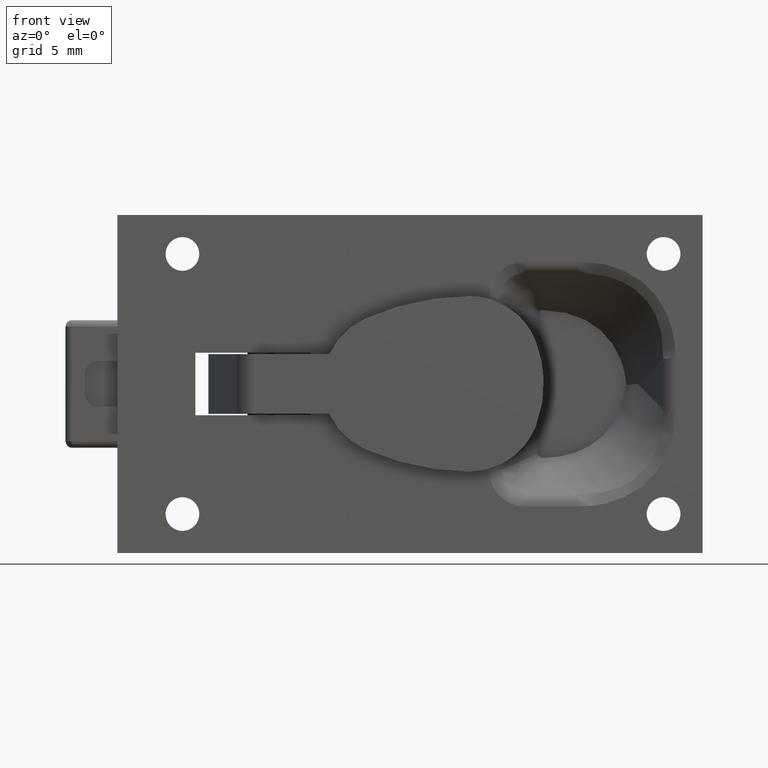
[diagram: clean part render]
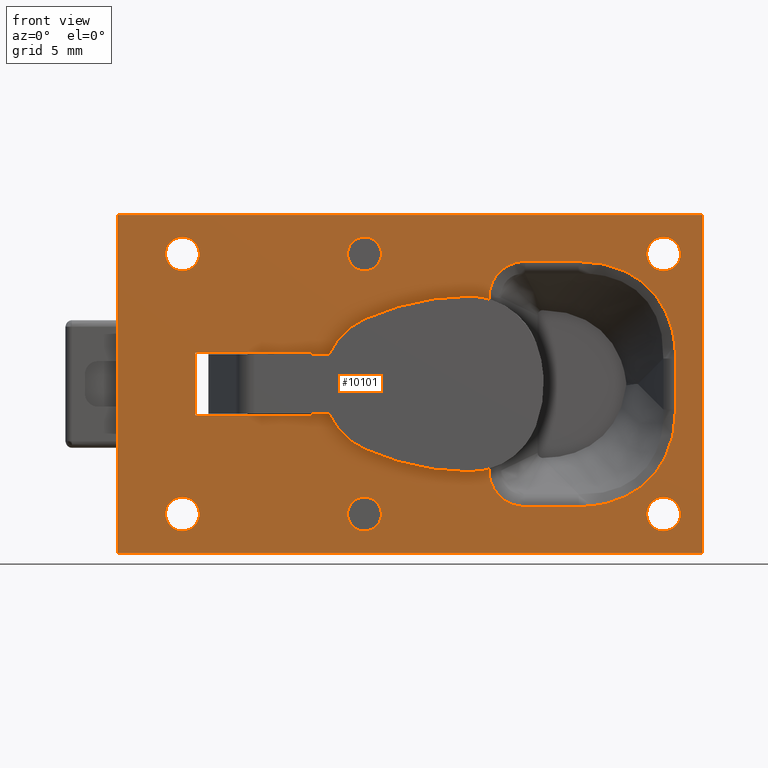
[diagram: same view with one face highlighted and labeled with its STEP entity id]
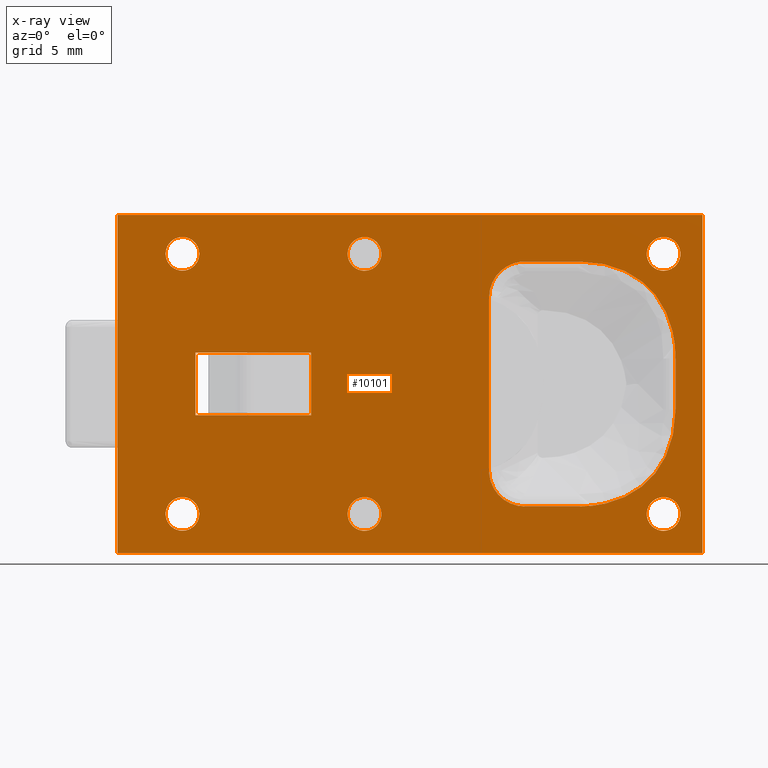
[diagram: x-ray of the same camera — body ghosted, the highlighted face saturated]
A machine part, front view. The second image highlights one B-rep face of the part: STEP entity #10101.
The next image is the same camera in x-ray: the body ghosted, the highlighted face saturated — about 0% of this face is hidden behind the body in this view.
In plain terms, the highlighted face is a freeform B-spline surface patch.
Its self-contained STEP definition (entity closure, byte-faithful):
#6309=CARTESIAN_POINT('',(-7.089949077953875,-4.713498E-017,9.838633597142373));
#6310=VERTEX_POINT('',#6309);
#6311=CARTESIAN_POINT('',(-5.800002999999920,0.0,8.699999999999999));
#6312=VERTEX_POINT('',#6311);
#6313=CARTESIAN_POINT('',(-7.089949077953875,-4.713498E-017,9.838633597142373));
#6314=CARTESIAN_POINT('',(-6.947511179919365,0.0,8.700000000000001));
#6315=CARTESIAN_POINT('',(-5.800002999999920,0.0,8.699999999999999));
#6323=(BOUNDED_CURVE()B_SPLINE_CURVE(2,(#6313,#6314,#6315),.UNSPECIFIED.,.F.,.U.)B_SPLINE_CURVE_WITH_KNOTS((3,3),(0.271473929010929,0.500000000000000),.UNSPECIFIED.)CURVE()GEOMETRIC_REPRESENTATION_ITEM()RATIONAL_B_SPLINE_CURVE((0.954005430196653,0.732265053940878,1.0))REPRESENTATION_ITEM(''));
#6324=EDGE_CURVE('',#6310,#6312,#6323,.T.);
#6326=CARTESIAN_POINT('',(-4.500052500018726,-4.683753E-017,10.011344496403289));
#6327=VERTEX_POINT('',#6326);
#6328=CARTESIAN_POINT('',(-5.800002999999920,0.0,8.699999999999999));
#6329=CARTESIAN_POINT('',(-4.500002999999920,0.0,8.699999999999999));
#6330=CARTESIAN_POINT('',(-4.500002999999920,0.0,10.0));
#6331=CARTESIAN_POINT('',(-4.500002999999920,0.0,10.005672356322325));
#6332=CARTESIAN_POINT('',(-4.500052500018726,-4.683753E-017,10.011344496403286));
#6340=(BOUNDED_CURVE()B_SPLINE_CURVE(2,(#6328,#6329,#6330,#6331,#6332),.UNSPECIFIED.,.F.,.U.)B_SPLINE_CURVE_WITH_KNOTS((3,2,3),(0.500000000000000,0.750000000000000,0.751539894404200),.UNSPECIFIED.)CURVE()GEOMETRIC_REPRESENTATION_ITEM()RATIONAL_B_SPLINE_CURVE((1.0,0.707106781186548,1.0,0.998195901485284,0.996414027940227))REPRESENTATION_ITEM(''));
#6341=EDGE_CURVE('',#6312,#6327,#6340,.T.);
#6412=CARTESIAN_POINT('',(-5.800002999999920,0.0,11.300000000000001));
#6413=VERTEX_POINT('',#6412);
#6414=CARTESIAN_POINT('',(-5.800002999999920,0.0,11.300000000000001));
#6415=CARTESIAN_POINT('',(-7.100002999999918,0.0,11.299999999999999));
#6416=CARTESIAN_POINT('',(-7.100002999999920,0.0,10.0));
#6417=CARTESIAN_POINT('',(-7.100002999999920,0.0,9.919003594050809));
#6418=CARTESIAN_POINT('',(-7.089949077953875,-4.713498E-017,9.838633597142373));
#6426=(BOUNDED_CURVE()B_SPLINE_CURVE(2,(#6414,#6415,#6416,#6417,#6418),.UNSPECIFIED.,.F.,.U.)B_SPLINE_CURVE_WITH_KNOTS((3,2,3),(0.0,0.250000000000000,0.271473929010929),.UNSPECIFIED.)CURVE()GEOMETRIC_REPRESENTATION_ITEM()RATIONAL_B_SPLINE_CURVE((1.0,0.707106781186548,1.0,0.974841727245670,0.954005430196653))REPRESENTATION_ITEM(''));
#6427=EDGE_CURVE('',#6413,#6310,#6426,.T.);
#6461=CARTESIAN_POINT('',(-4.500052500018726,-4.683753E-017,10.011344496403286));
#6462=CARTESIAN_POINT('',(-4.511298426732845,0.0,11.299999999999999));
#6463=CARTESIAN_POINT('',(-5.800002999999920,0.0,11.300000000000001));
#6471=(BOUNDED_CURVE()B_SPLINE_CURVE(2,(#6461,#6462,#6463),.UNSPECIFIED.,.F.,.U.)B_SPLINE_CURVE_WITH_KNOTS((3,3),(0.751539894404200,1.0),.UNSPECIFIED.)CURVE()GEOMETRIC_REPRESENTATION_ITEM()RATIONAL_B_SPLINE_CURVE((0.996414027940228,0.708910879701263,1.0))REPRESENTATION_ITEM(''));
#6472=EDGE_CURVE('',#6327,#6413,#6471,.T.);
#6495=CARTESIAN_POINT('',(-7.089949077953875,-4.713498E-017,-10.161366402857629));
#6496=VERTEX_POINT('',#6495);
#6497=CARTESIAN_POINT('',(-5.800002999999920,0.0,-11.300000000000001));
#6498=VERTEX_POINT('',#6497);
#6499=CARTESIAN_POINT('',(-7.089949077953875,-4.713498E-017,-10.161366402857626));
#6500=CARTESIAN_POINT('',(-6.947511179919368,0.0,-11.299999999999999));
#6501=CARTESIAN_POINT('',(-5.800002999999920,0.0,-11.300000000000001));
#6509=(BOUNDED_CURVE()B_SPLINE_CURVE(2,(#6499,#6500,#6501),.UNSPECIFIED.,.F.,.U.)B_SPLINE_CURVE_WITH_KNOTS((3,3),(0.271473929010929,0.500000000000000),.UNSPECIFIED.)CURVE()GEOMETRIC_REPRESENTATION_ITEM()RATIONAL_B_SPLINE_CURVE((0.954005430196653,0.732265053940877,1.0))REPRESENTATION_ITEM(''));
#6510=EDGE_CURVE('',#6496,#6498,#6509,.T.);
#6512=CARTESIAN_POINT('',(-4.500052500018726,-4.683753E-017,-9.988655503596714));
#6513=VERTEX_POINT('',#6512);
#6514=CARTESIAN_POINT('',(-5.800002999999920,0.0,-11.300000000000001));
#6515=CARTESIAN_POINT('',(-4.500002999999920,0.0,-11.299999999999999));
#6516=CARTESIAN_POINT('',(-4.500002999999920,0.0,-10.0));
#6517=CARTESIAN_POINT('',(-4.500002999999920,0.0,-9.994327643677673));
#6518=CARTESIAN_POINT('',(-4.500052500018726,-4.683753E-017,-9.988655503596714));
#6526=(BOUNDED_CURVE()B_SPLINE_CURVE(2,(#6514,#6515,#6516,#6517,#6518),.UNSPECIFIED.,.F.,.U.)B_SPLINE_CURVE_WITH_KNOTS((3,2,3),(0.500000000000000,0.750000000000000,0.751539894404200),.UNSPECIFIED.)CURVE()GEOMETRIC_REPRESENTATION_ITEM()RATIONAL_B_SPLINE_CURVE((1.0,0.707106781186548,1.0,0.998195901485284,0.996414027940227))REPRESENTATION_ITEM(''));
#6527=EDGE_CURVE('',#6498,#6513,#6526,.T.);
#6598=CARTESIAN_POINT('',(-5.800002999999920,0.0,-8.699999999999999));
#6599=VERTEX_POINT('',#6598);
#6600=CARTESIAN_POINT('',(-5.800002999999920,0.0,-8.699999999999999));
#6601=CARTESIAN_POINT('',(-7.100002999999918,0.0,-8.699999999999999));
#6602=CARTESIAN_POINT('',(-7.100002999999920,0.0,-10.0));
#6603=CARTESIAN_POINT('',(-7.100002999999919,0.0,-10.080996405949190));
#6604=CARTESIAN_POINT('',(-7.089949077953875,-4.713498E-017,-10.161366402857626));
#6612=(BOUNDED_CURVE()B_SPLINE_CURVE(2,(#6600,#6601,#6602,#6603,#6604),.UNSPECIFIED.,.F.,.U.)B_SPLINE_CURVE_WITH_KNOTS((3,2,3),(0.0,0.250000000000000,0.271473929010929),.UNSPECIFIED.)CURVE()GEOMETRIC_REPRESENTATION_ITEM()RATIONAL_B_SPLINE_CURVE((1.0,0.707106781186548,1.0,0.974841727245670,0.954005430196653))REPRESENTATION_ITEM(''));
#6613=EDGE_CURVE('',#6599,#6496,#6612,.T.);
#6647=CARTESIAN_POINT('',(-4.500052500018726,-4.683753E-017,-9.988655503596714));
#6648=CARTESIAN_POINT('',(-4.511298426732847,0.0,-8.700000000000001));
#6649=CARTESIAN_POINT('',(-5.800002999999920,0.0,-8.699999999999999));
#6657=(BOUNDED_CURVE()B_SPLINE_CURVE(2,(#6647,#6648,#6649),.UNSPECIFIED.,.F.,.U.)B_SPLINE_CURVE_WITH_KNOTS((3,3),(0.751539894404200,1.0),.UNSPECIFIED.)CURVE()GEOMETRIC_REPRESENTATION_ITEM()RATIONAL_B_SPLINE_CURVE((0.996414027940228,0.708910879701264,1.0))REPRESENTATION_ITEM(''));
#6658=EDGE_CURVE('',#6513,#6599,#6657,.T.);
#6681=CARTESIAN_POINT('',(6.910050922046045,-4.713498E-017,9.838633597142373));
#6682=VERTEX_POINT('',#6681);
#6683=CARTESIAN_POINT('',(8.199997000000000,0.0,8.699999999999999));
#6684=VERTEX_POINT('',#6683);
#6685=CARTESIAN_POINT('',(6.910050922046046,-4.713498E-017,9.838633597142373));
#6686=CARTESIAN_POINT('',(7.052488820080558,0.0,8.699999999999999));
#6687=CARTESIAN_POINT('',(8.199997000000000,0.0,8.699999999999999));
#6695=(BOUNDED_CURVE()B_SPLINE_CURVE(2,(#6685,#6686,#6687),.UNSPECIFIED.,.F.,.U.)B_SPLINE_CURVE_WITH_KNOTS((3,3),(0.271473929010929,0.500000000000000),.UNSPECIFIED.)CURVE()GEOMETRIC_REPRESENTATION_ITEM()RATIONAL_B_SPLINE_CURVE((0.954005430196652,0.732265053940878,1.0))REPRESENTATION_ITEM(''));
#6696=EDGE_CURVE('',#6682,#6684,#6695,.T.);
#6698=CARTESIAN_POINT('',(9.499947499981193,-4.683753E-017,10.011344496403289));
#6699=VERTEX_POINT('',#6698);
#6700=CARTESIAN_POINT('',(8.199997000000000,0.0,8.699999999999999));
#6701=CARTESIAN_POINT('',(9.499997000000001,0.0,8.699999999999999));
#6702=CARTESIAN_POINT('',(9.499997000000001,0.0,10.0));
#6703=CARTESIAN_POINT('',(9.499997000000001,0.0,10.005672356322325));
#6704=CARTESIAN_POINT('',(9.499947499981193,-4.683753E-017,10.011344496403286));
#6712=(BOUNDED_CURVE()B_SPLINE_CURVE(2,(#6700,#6701,#6702,#6703,#6704),.UNSPECIFIED.,.F.,.U.)B_SPLINE_CURVE_WITH_KNOTS((3,2,3),(0.500000000000000,0.750000000000000,0.751539894404200),.UNSPECIFIED.)CURVE()GEOMETRIC_REPRESENTATION_ITEM()RATIONAL_B_SPLINE_CURVE((1.0,0.707106781186548,1.0,0.998195901485284,0.996414027940227))REPRESENTATION_ITEM(''));
#6713=EDGE_CURVE('',#6684,#6699,#6712,.T.);
#6784=CARTESIAN_POINT('',(8.199997000000000,0.0,11.300000000000001));
#6785=VERTEX_POINT('',#6784);
#6786=CARTESIAN_POINT('',(8.199997000000000,0.0,11.300000000000001));
#6787=CARTESIAN_POINT('',(6.899997000000001,0.0,11.299999999999999));
#6788=CARTESIAN_POINT('',(6.899997000000001,0.0,10.0));
#6789=CARTESIAN_POINT('',(6.899997000000002,0.0,9.919003594050809));
#6790=CARTESIAN_POINT('',(6.910050922046045,-4.713498E-017,9.838633597142373));
#6798=(BOUNDED_CURVE()B_SPLINE_CURVE(2,(#6786,#6787,#6788,#6789,#6790),.UNSPECIFIED.,.F.,.U.)B_SPLINE_CURVE_WITH_KNOTS((3,2,3),(0.0,0.250000000000000,0.271473929010929),.UNSPECIFIED.)CURVE()GEOMETRIC_REPRESENTATION_ITEM()RATIONAL_B_SPLINE_CURVE((1.0,0.707106781186548,1.0,0.974841727245670,0.954005430196652))REPRESENTATION_ITEM(''));
#6799=EDGE_CURVE('',#6785,#6682,#6798,.T.);
#6833=CARTESIAN_POINT('',(9.499947499981193,-4.683753E-017,10.011344496403286));
#6834=CARTESIAN_POINT('',(9.488701573267074,0.0,11.299999999999999));
#6835=CARTESIAN_POINT('',(8.199997000000000,0.0,11.300000000000001));
#6843=(BOUNDED_CURVE()B_SPLINE_CURVE(2,(#6833,#6834,#6835),.UNSPECIFIED.,.F.,.U.)B_SPLINE_CURVE_WITH_KNOTS((3,3),(0.751539894404200,1.0),.UNSPECIFIED.)CURVE()GEOMETRIC_REPRESENTATION_ITEM()RATIONAL_B_SPLINE_CURVE((0.996414027940228,0.708910879701263,1.0))REPRESENTATION_ITEM(''));
#6844=EDGE_CURVE('',#6699,#6785,#6843,.T.);
#6867=CARTESIAN_POINT('',(6.910050922046045,-4.713498E-017,-10.161366402857629));
#6868=VERTEX_POINT('',#6867);
#6869=CARTESIAN_POINT('',(8.199997000000000,0.0,-11.300000000000001));
#6870=VERTEX_POINT('',#6869);
#6871=CARTESIAN_POINT('',(6.910050922046045,-4.713498E-017,-10.161366402857626));
#6872=CARTESIAN_POINT('',(7.052488820080554,0.0,-11.299999999999999));
#6873=CARTESIAN_POINT('',(8.199997000000000,0.0,-11.300000000000001));
#6881=(BOUNDED_CURVE()B_SPLINE_CURVE(2,(#6871,#6872,#6873),.UNSPECIFIED.,.F.,.U.)B_SPLINE_CURVE_WITH_KNOTS((3,3),(0.271473929010929,0.500000000000000),.UNSPECIFIED.)CURVE()GEOMETRIC_REPRESENTATION_ITEM()RATIONAL_B_SPLINE_CURVE((0.954005430196653,0.732265053940877,1.0))REPRESENTATION_ITEM(''));
#6882=EDGE_CURVE('',#6868,#6870,#6881,.T.);
#6884=CARTESIAN_POINT('',(9.499947499981193,-4.683753E-017,-9.988655503596714));
#6885=VERTEX_POINT('',#6884);
#6886=CARTESIAN_POINT('',(8.199997000000000,0.0,-11.300000000000001));
#6887=CARTESIAN_POINT('',(9.499997000000001,0.0,-11.299999999999999));
#6888=CARTESIAN_POINT('',(9.499997000000001,0.0,-10.0));
#6889=CARTESIAN_POINT('',(9.499997000000001,0.0,-9.994327643677673));
#6890=CARTESIAN_POINT('',(9.499947499981193,-4.683753E-017,-9.988655503596714));
#6898=(BOUNDED_CURVE()B_SPLINE_CURVE(2,(#6886,#6887,#6888,#6889,#6890),.UNSPECIFIED.,.F.,.U.)B_SPLINE_CURVE_WITH_KNOTS((3,2,3),(0.500000000000000,0.750000000000000,0.751539894404200),.UNSPECIFIED.)CURVE()GEOMETRIC_REPRESENTATION_ITEM()RATIONAL_B_SPLINE_CURVE((1.0,0.707106781186548,1.0,0.998195901485284,0.996414027940227))REPRESENTATION_ITEM(''));
#6899=EDGE_CURVE('',#6870,#6885,#6898,.T.);
#6970=CARTESIAN_POINT('',(8.199997000000000,0.0,-8.699999999999999));
#6971=VERTEX_POINT('',#6970);
#6972=CARTESIAN_POINT('',(8.199997000000000,0.0,-8.699999999999999));
#6973=CARTESIAN_POINT('',(6.899997000000001,0.0,-8.699999999999999));
#6974=CARTESIAN_POINT('',(6.899997000000001,0.0,-10.0));
#6975=CARTESIAN_POINT('',(6.899997000000001,0.0,-10.080996405949190));
#6976=CARTESIAN_POINT('',(6.910050922046045,-4.713498E-017,-10.161366402857626));
#6984=(BOUNDED_CURVE()B_SPLINE_CURVE(2,(#6972,#6973,#6974,#6975,#6976),.UNSPECIFIED.,.F.,.U.)B_SPLINE_CURVE_WITH_KNOTS((3,2,3),(0.0,0.250000000000000,0.271473929010929),.UNSPECIFIED.)CURVE()GEOMETRIC_REPRESENTATION_ITEM()RATIONAL_B_SPLINE_CURVE((1.0,0.707106781186548,1.0,0.974841727245670,0.954005430196653))REPRESENTATION_ITEM(''));
#6985=EDGE_CURVE('',#6971,#6868,#6984,.T.);
#7019=CARTESIAN_POINT('',(9.499947499981193,-4.683753E-017,-9.988655503596714));
#7020=CARTESIAN_POINT('',(9.488701573267074,0.0,-8.699999999999999));
#7021=CARTESIAN_POINT('',(8.199997000000000,0.0,-8.699999999999999));
#7029=(BOUNDED_CURVE()B_SPLINE_CURVE(2,(#7019,#7020,#7021),.UNSPECIFIED.,.F.,.U.)B_SPLINE_CURVE_WITH_KNOTS((3,3),(0.751539894404200,1.0),.UNSPECIFIED.)CURVE()GEOMETRIC_REPRESENTATION_ITEM()RATIONAL_B_SPLINE_CURVE((0.996414027940228,0.708910879701263,1.0))REPRESENTATION_ITEM(''));
#7030=EDGE_CURVE('',#6885,#6971,#7029,.T.);
#7053=CARTESIAN_POINT('',(29.910050922046050,-4.713498E-017,9.838633597142376));
#7054=VERTEX_POINT('',#7053);
#7055=CARTESIAN_POINT('',(31.199997000000000,0.0,8.699999999999999));
#7056=VERTEX_POINT('',#7055);
#7057=CARTESIAN_POINT('',(29.910050922046047,-4.713498E-017,9.838633597142376));
#7058=CARTESIAN_POINT('',(30.052488820080555,0.0,8.699999999999999));
#7059=CARTESIAN_POINT('',(31.199997000000000,0.0,8.699999999999999));
#7067=(BOUNDED_CURVE()B_SPLINE_CURVE(2,(#7057,#7058,#7059),.UNSPECIFIED.,.F.,.U.)B_SPLINE_CURVE_WITH_KNOTS((3,3),(0.271473929010929,0.500000000000000),.UNSPECIFIED.)CURVE()GEOMETRIC_REPRESENTATION_ITEM()RATIONAL_B_SPLINE_CURVE((0.954005430196653,0.732265053940878,1.0))REPRESENTATION_ITEM(''));
#7068=EDGE_CURVE('',#7054,#7056,#7067,.T.);
#7070=CARTESIAN_POINT('',(32.499947499981189,-4.683753E-017,10.011344496403289));
#7071=VERTEX_POINT('',#7070);
#7072=CARTESIAN_POINT('',(31.199997000000000,0.0,8.699999999999999));
#7073=CARTESIAN_POINT('',(32.499996999999993,0.0,8.699999999999999));
#7074=CARTESIAN_POINT('',(32.499997000000000,0.0,10.0));
#7075=CARTESIAN_POINT('',(32.499996999999993,0.0,10.005672356322325));
#7076=CARTESIAN_POINT('',(32.499947499981189,-4.683753E-017,10.011344496403286));
#7084=(BOUNDED_CURVE()B_SPLINE_CURVE(2,(#7072,#7073,#7074,#7075,#7076),.UNSPECIFIED.,.F.,.U.)B_SPLINE_CURVE_WITH_KNOTS((3,2,3),(0.500000000000000,0.750000000000000,0.751539894404200),.UNSPECIFIED.)CURVE()GEOMETRIC_REPRESENTATION_ITEM()RATIONAL_B_SPLINE_CURVE((1.0,0.707106781186548,1.0,0.998195901485284,0.996414027940227))REPRESENTATION_ITEM(''));
#7085=EDGE_CURVE('',#7056,#7071,#7084,.T.);
#7156=CARTESIAN_POINT('',(31.199997000000000,0.0,11.300000000000001));
#7157=VERTEX_POINT('',#7156);
#7158=CARTESIAN_POINT('',(31.199997000000000,0.0,11.300000000000001));
#7159=CARTESIAN_POINT('',(29.899996999999999,0.0,11.299999999999999));
#7160=CARTESIAN_POINT('',(29.899996999999999,0.0,10.0));
#7161=CARTESIAN_POINT('',(29.899997000000010,0.0,9.919003594050809));
#7162=CARTESIAN_POINT('',(29.910050922046047,-4.713498E-017,9.838633597142376));
#7170=(BOUNDED_CURVE()B_SPLINE_CURVE(2,(#7158,#7159,#7160,#7161,#7162),.UNSPECIFIED.,.F.,.U.)B_SPLINE_CURVE_WITH_KNOTS((3,2,3),(0.0,0.250000000000000,0.271473929010929),.UNSPECIFIED.)CURVE()GEOMETRIC_REPRESENTATION_ITEM()RATIONAL_B_SPLINE_CURVE((1.0,0.707106781186548,1.0,0.974841727245670,0.954005430196653))REPRESENTATION_ITEM(''));
#7171=EDGE_CURVE('',#7157,#7054,#7170,.T.);
#7205=CARTESIAN_POINT('',(32.499947499981197,-4.683753E-017,10.011344496403286));
#7206=CARTESIAN_POINT('',(32.488701573267072,0.0,11.299999999999999));
#7207=CARTESIAN_POINT('',(31.199997000000000,0.0,11.300000000000001));
#7215=(BOUNDED_CURVE()B_SPLINE_CURVE(2,(#7205,#7206,#7207),.UNSPECIFIED.,.F.,.U.)B_SPLINE_CURVE_WITH_KNOTS((3,3),(0.751539894404200,1.0),.UNSPECIFIED.)CURVE()GEOMETRIC_REPRESENTATION_ITEM()RATIONAL_B_SPLINE_CURVE((0.996414027940228,0.708910879701263,1.0))REPRESENTATION_ITEM(''));
#7216=EDGE_CURVE('',#7071,#7157,#7215,.T.);
#7239=CARTESIAN_POINT('',(29.910050922046050,-4.894787E-017,-10.161366402857629));
#7240=VERTEX_POINT('',#7239);
#7241=CARTESIAN_POINT('',(31.199997000000000,0.0,-11.300000000000001));
#7242=VERTEX_POINT('',#7241);
#7243=CARTESIAN_POINT('',(29.910050922046050,-4.894787E-017,-10.161366402857626));
#7244=CARTESIAN_POINT('',(30.052488820080551,0.0,-11.299999999999999));
#7245=CARTESIAN_POINT('',(31.199997000000000,0.0,-11.300000000000001));
#7253=(BOUNDED_CURVE()B_SPLINE_CURVE(2,(#7243,#7244,#7245),.UNSPECIFIED.,.F.,.U.)B_SPLINE_CURVE_WITH_KNOTS((3,3),(0.271473929010929,0.500000000000000),.UNSPECIFIED.)CURVE()GEOMETRIC_REPRESENTATION_ITEM()RATIONAL_B_SPLINE_CURVE((0.954005430196653,0.732265053940877,1.0))REPRESENTATION_ITEM(''));
#7254=EDGE_CURVE('',#7240,#7242,#7253,.T.);
#7256=CARTESIAN_POINT('',(32.499947499981189,-4.857226E-017,-9.988655503596714));
#7257=VERTEX_POINT('',#7256);
#7258=CARTESIAN_POINT('',(31.199997000000000,0.0,-11.300000000000001));
#7259=CARTESIAN_POINT('',(32.499996999999993,0.0,-11.299999999999999));
#7260=CARTESIAN_POINT('',(32.499997000000000,0.0,-10.0));
#7261=CARTESIAN_POINT('',(32.499996999999993,0.0,-9.994327643677673));
#7262=CARTESIAN_POINT('',(32.499947499981189,-4.857226E-017,-9.988655503596714));
#7270=(BOUNDED_CURVE()B_SPLINE_CURVE(2,(#7258,#7259,#7260,#7261,#7262),.UNSPECIFIED.,.F.,.U.)B_SPLINE_CURVE_WITH_KNOTS((3,2,3),(0.500000000000000,0.750000000000000,0.751539894404200),.UNSPECIFIED.)CURVE()GEOMETRIC_REPRESENTATION_ITEM()RATIONAL_B_SPLINE_CURVE((1.0,0.707106781186548,1.0,0.998195901485284,0.996414027940227))REPRESENTATION_ITEM(''));
#7271=EDGE_CURVE('',#7242,#7257,#7270,.T.);
#7342=CARTESIAN_POINT('',(31.199997000000000,0.0,-8.699999999999999));
#7343=VERTEX_POINT('',#7342);
#7344=CARTESIAN_POINT('',(31.199997000000000,0.0,-8.699999999999999));
#7345=CARTESIAN_POINT('',(29.899996999999999,0.0,-8.699999999999999));
#7346=CARTESIAN_POINT('',(29.899996999999999,0.0,-10.0));
#7347=CARTESIAN_POINT('',(29.899997000000003,0.0,-10.080996405949190));
#7348=CARTESIAN_POINT('',(29.910050922046050,-4.894787E-017,-10.161366402857626));
#7356=(BOUNDED_CURVE()B_SPLINE_CURVE(2,(#7344,#7345,#7346,#7347,#7348),.UNSPECIFIED.,.F.,.U.)B_SPLINE_CURVE_WITH_KNOTS((3,2,3),(0.0,0.250000000000000,0.271473929010929),.UNSPECIFIED.)CURVE()GEOMETRIC_REPRESENTATION_ITEM()RATIONAL_B_SPLINE_CURVE((1.0,0.707106781186548,1.0,0.974841727245670,0.954005430196653))REPRESENTATION_ITEM(''));
#7357=EDGE_CURVE('',#7343,#7240,#7356,.T.);
#7391=CARTESIAN_POINT('',(32.499947499981189,-4.857226E-017,-9.988655503596714));
#7392=CARTESIAN_POINT('',(32.488701573267065,0.0,-8.700000000000001));
#7393=CARTESIAN_POINT('',(31.199997000000000,0.0,-8.699999999999999));
#7401=(BOUNDED_CURVE()B_SPLINE_CURVE(2,(#7391,#7392,#7393),.UNSPECIFIED.,.F.,.U.)B_SPLINE_CURVE_WITH_KNOTS((3,3),(0.751539894404200,1.0),.UNSPECIFIED.)CURVE()GEOMETRIC_REPRESENTATION_ITEM()RATIONAL_B_SPLINE_CURVE((0.996414027940228,0.708910879701264,1.0))REPRESENTATION_ITEM(''));
#7402=EDGE_CURVE('',#7257,#7343,#7401,.T.);
#8482=CARTESIAN_POINT('',(17.778946274483101,0.0,6.646398711671950));
#8483=VERTEX_POINT('',#8482);
#8539=CARTESIAN_POINT('',(20.553598288328150,0.0,9.421050725516990));
#8540=VERTEX_POINT('',#8539);
#8554=CARTESIAN_POINT('',(17.778946274483101,0.0,6.646398711671950));
#8555=CARTESIAN_POINT('',(17.778946274483101,0.0,6.829865902338248));
#8556=CARTESIAN_POINT('',(17.796259787548909,0.0,7.010422215472984));
#8557=CARTESIAN_POINT('',(17.847765731559399,2.407412E-032,7.276963436276610));
#8558=CARTESIAN_POINT('',(17.869217966684339,2.168404E-016,7.365090321117810));
#8559=CARTESIAN_POINT('',(17.920964981365099,2.168404E-016,7.539857415981073));
#8560=CARTESIAN_POINT('',(17.951435313515429,2.602085E-015,7.626822699971944));
#8561=CARTESIAN_POINT('',(18.054433848801310,2.602085E-015,7.879890654106405));
#8562=CARTESIAN_POINT('',(18.138784618128959,-1.084202E-015,8.039873911086817));
#8563=CARTESIAN_POINT('',(18.288818194344540,-1.084202E-015,8.266766967191652));
#8564=CARTESIAN_POINT('',(18.342831441784082,6.259272E-031,8.340274505794515));
#8565=CARTESIAN_POINT('',(18.458841594224019,-6.098778E-031,8.482422335896546));
#8566=CARTESIAN_POINT('',(18.519934490543740,1.517883E-015,8.549969319175826));
#8567=CARTESIAN_POINT('',(18.712164039472061,1.517883E-015,8.742386528190208));
#8568=CARTESIAN_POINT('',(18.852170751558521,-1.951564E-015,8.857125304041926));
#8569=CARTESIAN_POINT('',(19.042228651447690,-1.951564E-015,8.983359108500073));
#8570=CARTESIAN_POINT('',(19.081106913656619,1.301043E-015,9.007801342983193));
#8571=CARTESIAN_POINT('',(19.159846559250681,1.301043E-015,9.054582849394016));
#8572=CARTESIAN_POINT('',(19.199649849702119,-2.168404E-016,9.076896427408398));
#8573=CARTESIAN_POINT('',(19.320331488470380,-2.168404E-016,9.140676795751450));
#8574=CARTESIAN_POINT('',(19.484625779485459,-6.505213E-016,9.217304407128669));
#8575=CARTESIAN_POINT('',(19.655535902928040,1.084202E-015,9.277491551757054));
#8576=CARTESIAN_POINT('',(19.786209518087588,1.084202E-015,9.316441672747750));
#8577=CARTESIAN_POINT('',(19.830183254561899,2.168404E-016,9.328391614754342));
#8578=CARTESIAN_POINT('',(19.918972691872408,2.168404E-016,9.350199201653478));
#8579=CARTESIAN_POINT('',(19.963858182016089,2.168404E-016,9.360066231663147));
#8580=CARTESIAN_POINT('',(20.188484599729680,2.168404E-016,9.403733215080818));
#8581=CARTESIAN_POINT('',(20.370100357310228,1.324077E-031,9.421050725516988));
#8582=CARTESIAN_POINT('',(20.553598288328150,0.0,9.421050725516990));
#8583=B_SPLINE_CURVE_WITH_KNOTS('',3,(#8554,#8555,#8556,#8557,#8558,#8559,#8560,#8561,#8562,#8563,#8564,#8565,#8566,#8567,#8568,#8569,#8570,#8571,#8572,#8573,#8574,#8575,#8576,#8577,#8578,#8579,#8580,#8581,#8582),.UNSPECIFIED.,.F.,.U.,(4,2,2,2,2,2,2,2,2,2,1,2,2,2,4),(0.0,0.125000000000002,0.187500000000003,0.250000000000005,0.375000000000007,0.437500000000008,0.500000000000009,0.625000000000009,0.656250000000009,0.687500000000010,0.750000000000008,0.812500000000007,0.843750000000006,0.875000000000004,1.0),.UNSPECIFIED.);
#8584=EDGE_CURVE('',#8483,#8540,#8583,.T.);
#8605=CARTESIAN_POINT('',(24.664644686459599,0.0,9.421050725516990));
#8606=VERTEX_POINT('',#8605);
#8620=CARTESIAN_POINT('',(20.553598288328150,0.0,9.421050725516990));
#8621=CARTESIAN_POINT('',(24.664644686459599,0.0,9.421050725516990));
#8622=QUASI_UNIFORM_CURVE('',1,(#8620,#8621),.UNSPECIFIED.,.F.,.U.);
#8623=EDGE_CURVE('',#8540,#8606,#8622,.T.);
#8648=CARTESIAN_POINT('',(17.778946274483101,0.0,-6.646398711671950));
#8649=VERTEX_POINT('',#8648);
#8671=CARTESIAN_POINT('',(17.778946274483101,0.0,-6.646398711671950));
#8672=CARTESIAN_POINT('',(17.778946274483101,0.0,6.646398711671950));
#8673=QUASI_UNIFORM_CURVE('',1,(#8671,#8672),.UNSPECIFIED.,.F.,.U.);
#8674=EDGE_CURVE('',#8649,#8483,#8673,.T.);
#8759=CARTESIAN_POINT('',(32.121047725517052,0.0,1.964647686459510));
#8760=VERTEX_POINT('',#8759);
#8774=CARTESIAN_POINT('',(24.664644686459589,-2.168404E-016,9.421050725516988));
#8775=CARTESIAN_POINT('',(32.121047725517059,-2.168404E-016,9.421050725516999));
#8776=CARTESIAN_POINT('',(32.121047725517080,-2.168404E-016,1.964647686459544));
#8784=(BOUNDED_CURVE()B_SPLINE_CURVE(2,(#8774,#8775,#8776),.UNSPECIFIED.,.F.,.U.)CURVE()GEOMETRIC_REPRESENTATION_ITEM()QUASI_UNIFORM_CURVE()RATIONAL_B_SPLINE_CURVE((1.0,0.831852232639977,1.0))REPRESENTATION_ITEM(''));
#8785=EDGE_CURVE('',#8606,#8760,#8784,.T.);
#8912=CARTESIAN_POINT('',(20.553598288328150,0.0,-9.421050725516990));
#8913=VERTEX_POINT('',#8912);
#8968=CARTESIAN_POINT('',(20.553598288328150,0.0,-9.421050725516981));
#8969=CARTESIAN_POINT('',(20.370131097661861,-2.708339E-032,-9.421050725516979));
#8970=CARTESIAN_POINT('',(20.189574784527121,1.084202E-015,-9.403737212451187));
#8971=CARTESIAN_POINT('',(19.923033563723489,1.084202E-015,-9.352231268440693));
#8972=CARTESIAN_POINT('',(19.834906678882302,2.168404E-016,-9.330779033315752));
#8973=CARTESIAN_POINT('',(19.660139584019038,2.168404E-016,-9.279032018634998));
#8974=CARTESIAN_POINT('',(19.573174300028150,1.084202E-015,-9.248561686484669));
#8975=CARTESIAN_POINT('',(19.320106345893699,1.084202E-015,-9.145563151198791));
#8976=CARTESIAN_POINT('',(19.160123088913291,2.407412E-031,-9.061212381871133));
#8977=CARTESIAN_POINT('',(18.933230032808449,0.0,-8.911178805655558));
#8978=CARTESIAN_POINT('',(18.859722494205581,0.0,-8.857165558216021));
#8979=CARTESIAN_POINT('',(18.717574664103559,6.098778E-031,-8.741155405776089));
#8980=CARTESIAN_POINT('',(18.650027680824280,-1.084202E-015,-8.680062509456354));
#8981=CARTESIAN_POINT('',(18.457610471809890,-1.084202E-015,-8.487832960528040));
#8982=CARTESIAN_POINT('',(18.342871695958191,6.505213E-016,-8.347826248441585));
#8983=CARTESIAN_POINT('',(18.216637891500032,6.505213E-016,-8.157768348552418));
#8984=CARTESIAN_POINT('',(18.192195657016910,2.168404E-016,-8.118890086343489));
#8985=CARTESIAN_POINT('',(18.145414150606079,2.168404E-016,-8.040150440749423));
#8986=CARTESIAN_POINT('',(18.123100572591699,2.168404E-016,-8.000347150297984));
#8987=CARTESIAN_POINT('',(18.059320204248650,2.168404E-016,-7.879665511529727));
#8988=CARTESIAN_POINT('',(17.982692592871420,-6.505213E-016,-7.715371220514633));
#8989=CARTESIAN_POINT('',(17.922505448243051,2.168404E-016,-7.544461097072062));
#8990=CARTESIAN_POINT('',(17.883555327252360,2.168404E-016,-7.413787481912510));
#8991=CARTESIAN_POINT('',(17.871605385245751,-2.168404E-016,-7.369813745438195));
#8992=CARTESIAN_POINT('',(17.849797798346611,-2.168404E-016,-7.281024308127691));
#8993=CARTESIAN_POINT('',(17.839930768336949,2.168404E-016,-7.236138817984022));
#8994=CARTESIAN_POINT('',(17.796263784919290,2.168404E-016,-7.011512400270427));
#8995=CARTESIAN_POINT('',(17.778946274483101,-1.457822E-031,-6.829896642689858));
#8996=CARTESIAN_POINT('',(17.778946274483101,8.210733E-045,-6.646398711671942));
#8997=B_SPLINE_CURVE_WITH_KNOTS('',3,(#8968,#8969,#8970,#8971,#8972,#8973,#8974,#8975,#8976,#8977,#8978,#8979,#8980,#8981,#8982,#8983,#8984,#8985,#8986,#8987,#8988,#8989,#8990,#8991,#8992,#8993,#8994,#8995,#8996),.UNSPECIFIED.,.F.,.U.,(4,2,2,2,2,2,2,2,2,2,1,2,2,2,4),(0.0,0.125000000000000,0.187500000000000,0.250000000000000,0.374999999999998,0.437499999999998,0.499999999999998,0.624999999999997,0.656249999999996,0.687499999999995,0.749999999999995,0.812499999999995,0.843749999999995,0.874999999999996,1.0),.UNSPECIFIED.);
#8998=EDGE_CURVE('',#8913,#8649,#8997,.T.);
#9019=CARTESIAN_POINT('',(32.121047725517052,0.0,-1.964647686459515));
#9020=VERTEX_POINT('',#9019);
#9034=CARTESIAN_POINT('',(32.121047725517052,0.0,1.964647686459510));
#9035=CARTESIAN_POINT('',(32.121047725517052,0.0,-1.964647686459515));
#9036=QUASI_UNIFORM_CURVE('',1,(#9034,#9035),.UNSPECIFIED.,.F.,.U.);
#9037=EDGE_CURVE('',#8760,#9020,#9036,.T.);
#9062=CARTESIAN_POINT('',(24.664644686459599,0.0,-9.421050725516990));
#9063=VERTEX_POINT('',#9062);
#9085=CARTESIAN_POINT('',(24.664644686459599,0.0,-9.421050725516990));
#9086=CARTESIAN_POINT('',(20.553598288328150,0.0,-9.421050725516990));
#9087=QUASI_UNIFORM_CURVE('',1,(#9085,#9086),.UNSPECIFIED.,.F.,.U.);
#9088=EDGE_CURVE('',#9063,#8913,#9087,.T.);
#9186=CARTESIAN_POINT('',(32.121047725517080,-2.168404E-016,-1.964647686459479));
#9187=CARTESIAN_POINT('',(32.121047725517101,-2.168404E-016,-9.421050725516986));
#9188=CARTESIAN_POINT('',(24.664644686459610,-2.168404E-016,-9.421050725516988));
#9196=(BOUNDED_CURVE()B_SPLINE_CURVE(2,(#9186,#9187,#9188),.UNSPECIFIED.,.F.,.U.)CURVE()GEOMETRIC_REPRESENTATION_ITEM()QUASI_UNIFORM_CURVE()RATIONAL_B_SPLINE_CURVE((1.0,0.831852232639976,1.0))REPRESENTATION_ITEM(''));
#9197=EDGE_CURVE('',#9020,#9063,#9196,.T.);
#9608=CARTESIAN_POINT('',(4.099996999999885,0.0,-2.400000000000000));
#9609=VERTEX_POINT('',#9608);
#9615=CARTESIAN_POINT('',(4.099996999999885,0.0,2.400000000000000));
#9616=VERTEX_POINT('',#9615);
#9617=CARTESIAN_POINT('',(4.099996999999885,0.0,-2.400000000000000));
#9618=CARTESIAN_POINT('',(4.099996999999885,0.0,2.400000000000000));
#9619=QUASI_UNIFORM_CURVE('',1,(#9617,#9618),.UNSPECIFIED.,.F.,.U.);
#9620=EDGE_CURVE('',#9609,#9616,#9619,.T.);
#9643=CARTESIAN_POINT('',(-4.800003000000119,0.0,-2.400000000000000));
#9644=VERTEX_POINT('',#9643);
#9650=CARTESIAN_POINT('',(-4.800003000000119,0.0,-2.400000000000000));
#9651=CARTESIAN_POINT('',(4.099996999999885,0.0,-2.400000000000000));
#9652=QUASI_UNIFORM_CURVE('',1,(#9650,#9651),.UNSPECIFIED.,.F.,.U.);
#9653=EDGE_CURVE('',#9644,#9609,#9652,.T.);
#9685=CARTESIAN_POINT('',(-4.800003000000119,0.0,2.400000000000000));
#9686=VERTEX_POINT('',#9685);
#9692=CARTESIAN_POINT('',(-4.800003000000119,0.0,2.400000000000000));
#9693=CARTESIAN_POINT('',(-4.800003000000119,0.0,-2.400000000000000));
#9694=QUASI_UNIFORM_CURVE('',1,(#9692,#9693),.UNSPECIFIED.,.F.,.U.);
#9695=EDGE_CURVE('',#9686,#9644,#9694,.T.);
#9713=CARTESIAN_POINT('',(4.099996999999885,0.0,2.400000000000000));
#9714=CARTESIAN_POINT('',(-4.800003000000119,0.0,2.400000000000000));
#9715=QUASI_UNIFORM_CURVE('',1,(#9713,#9714),.UNSPECIFIED.,.F.,.U.);
#9716=EDGE_CURVE('',#9616,#9686,#9715,.T.);
#10014=CARTESIAN_POINT('',(-13.047752912781389,0.0,14.298699949606959));
#10015=CARTESIAN_POINT('',(36.447748119775341,0.0,14.298699949606959));
#10016=CARTESIAN_POINT('',(-13.047752912781389,0.0,-14.298700646981301));
#10017=CARTESIAN_POINT('',(36.447748119775341,0.0,-14.298700646981301));
#10018=B_SPLINE_SURFACE_WITH_KNOTS('',1,1,((#10014,#10016),(#10015,#10017)),.UNSPECIFIED.,.F.,.F.,.U.,(2,2),(2,2),(0.0,49.495501032556732),(0.0,28.597400596588258),.UNSPECIFIED.);
#10019=CARTESIAN_POINT('',(-10.800003000000119,0.0,13.0));
#10020=VERTEX_POINT('',#10019);
#10021=CARTESIAN_POINT('',(34.199997000000003,0.0,13.0));
#10022=VERTEX_POINT('',#10021);
#10023=CARTESIAN_POINT('',(-10.800003000000119,0.0,13.0));
#10024=CARTESIAN_POINT('',(34.199997000000003,0.0,13.0));
#10025=QUASI_UNIFORM_CURVE('',1,(#10023,#10024),.UNSPECIFIED.,.F.,.U.);
#10026=EDGE_CURVE('',#10020,#10022,#10025,.T.);
#10027=ORIENTED_EDGE('',*,*,#10026,.F.);
#10028=CARTESIAN_POINT('',(-10.800003000000119,0.0,-13.0));
#10029=VERTEX_POINT('',#10028);
#10030=CARTESIAN_POINT('',(-10.800003000000119,0.0,-13.0));
#10031=CARTESIAN_POINT('',(-10.800003000000119,0.0,13.0));
#10032=QUASI_UNIFORM_CURVE('',1,(#10030,#10031),.UNSPECIFIED.,.F.,.U.);
#10033=EDGE_CURVE('',#10029,#10020,#10032,.T.);
#10034=ORIENTED_EDGE('',*,*,#10033,.F.);
#10035=CARTESIAN_POINT('',(34.199997000000003,0.0,-13.0));
#10036=VERTEX_POINT('',#10035);
#10037=CARTESIAN_POINT('',(34.199997000000003,0.0,-13.0));
#10038=CARTESIAN_POINT('',(-10.800003000000119,0.0,-13.0));
#10039=QUASI_UNIFORM_CURVE('',1,(#10037,#10038),.UNSPECIFIED.,.F.,.U.);
#10040=EDGE_CURVE('',#10036,#10029,#10039,.T.);
#10041=ORIENTED_EDGE('',*,*,#10040,.F.);
#10042=CARTESIAN_POINT('',(34.199997000000003,0.0,13.0));
#10043=CARTESIAN_POINT('',(34.199997000000003,0.0,-13.0));
#10044=QUASI_UNIFORM_CURVE('',1,(#10042,#10043),.UNSPECIFIED.,.F.,.U.);
#10045=EDGE_CURVE('',#10022,#10036,#10044,.T.);
#10046=ORIENTED_EDGE('',*,*,#10045,.F.);
#10047=EDGE_LOOP('',(#10027,#10034,#10041,#10046));
#10048=FACE_OUTER_BOUND('',#10047,.T.);
#10049=ORIENTED_EDGE('',*,*,#9695,.F.);
#10050=ORIENTED_EDGE('',*,*,#9716,.F.);
#10051=ORIENTED_EDGE('',*,*,#9620,.F.);
#10052=ORIENTED_EDGE('',*,*,#9653,.F.);
#10053=EDGE_LOOP('',(#10049,#10050,#10051,#10052));
#10054=FACE_BOUND('',#10053,.T.);
#10055=ORIENTED_EDGE('',*,*,#8674,.T.);
#10056=ORIENTED_EDGE('',*,*,#8584,.T.);
#10057=ORIENTED_EDGE('',*,*,#8623,.T.);
#10058=ORIENTED_EDGE('',*,*,#8785,.T.);
#10059=ORIENTED_EDGE('',*,*,#9037,.T.);
#10060=ORIENTED_EDGE('',*,*,#9197,.T.);
#10061=ORIENTED_EDGE('',*,*,#9088,.T.);
#10062=ORIENTED_EDGE('',*,*,#8998,.T.);
#10063=EDGE_LOOP('',(#10055,#10056,#10057,#10058,#10059,#10060,#10061,#10062));
#10064=FACE_BOUND('',#10063,.T.);
#10065=ORIENTED_EDGE('',*,*,#7271,.F.);
#10066=ORIENTED_EDGE('',*,*,#7254,.F.);
#10067=ORIENTED_EDGE('',*,*,#7357,.F.);
#10068=ORIENTED_EDGE('',*,*,#7402,.F.);
#10069=EDGE_LOOP('',(#10065,#10066,#10067,#10068));
#10070=FACE_BOUND('',#10069,.T.);
#10071=ORIENTED_EDGE('',*,*,#7085,.F.);
#10072=ORIENTED_EDGE('',*,*,#7068,.F.);
#10073=ORIENTED_EDGE('',*,*,#7171,.F.);
#10074=ORIENTED_EDGE('',*,*,#7216,.F.);
#10075=EDGE_LOOP('',(#10071,#10072,#10073,#10074));
#10076=FACE_BOUND('',#10075,.T.);
#10077=ORIENTED_EDGE('',*,*,#6899,.F.);
#10078=ORIENTED_EDGE('',*,*,#6882,.F.);
#10079=ORIENTED_EDGE('',*,*,#6985,.F.);
#10080=ORIENTED_EDGE('',*,*,#7030,.F.);
#10081=EDGE_LOOP('',(#10077,#10078,#10079,#10080));
#10082=FACE_BOUND('',#10081,.T.);
#10083=ORIENTED_EDGE('',*,*,#6713,.F.);
#10084=ORIENTED_EDGE('',*,*,#6696,.F.);
#10085=ORIENTED_EDGE('',*,*,#6799,.F.);
#10086=ORIENTED_EDGE('',*,*,#6844,.F.);
#10087=EDGE_LOOP('',(#10083,#10084,#10085,#10086));
#10088=FACE_BOUND('',#10087,.T.);
#10089=ORIENTED_EDGE('',*,*,#6527,.F.);
#10090=ORIENTED_EDGE('',*,*,#6510,.F.);
#10091=ORIENTED_EDGE('',*,*,#6613,.F.);
#10092=ORIENTED_EDGE('',*,*,#6658,.F.);
#10093=EDGE_LOOP('',(#10089,#10090,#10091,#10092));
#10094=FACE_BOUND('',#10093,.T.);
#10095=ORIENTED_EDGE('',*,*,#6341,.F.);
#10096=ORIENTED_EDGE('',*,*,#6324,.F.);
#10097=ORIENTED_EDGE('',*,*,#6427,.F.);
#10098=ORIENTED_EDGE('',*,*,#6472,.F.);
#10099=EDGE_LOOP('',(#10095,#10096,#10097,#10098));
#10100=FACE_BOUND('',#10099,.T.);
#10101=ADVANCED_FACE('',(#10048,#10054,#10064,#10070,#10076,#10082,#10088,#10094,#10100),#10018,.F.);